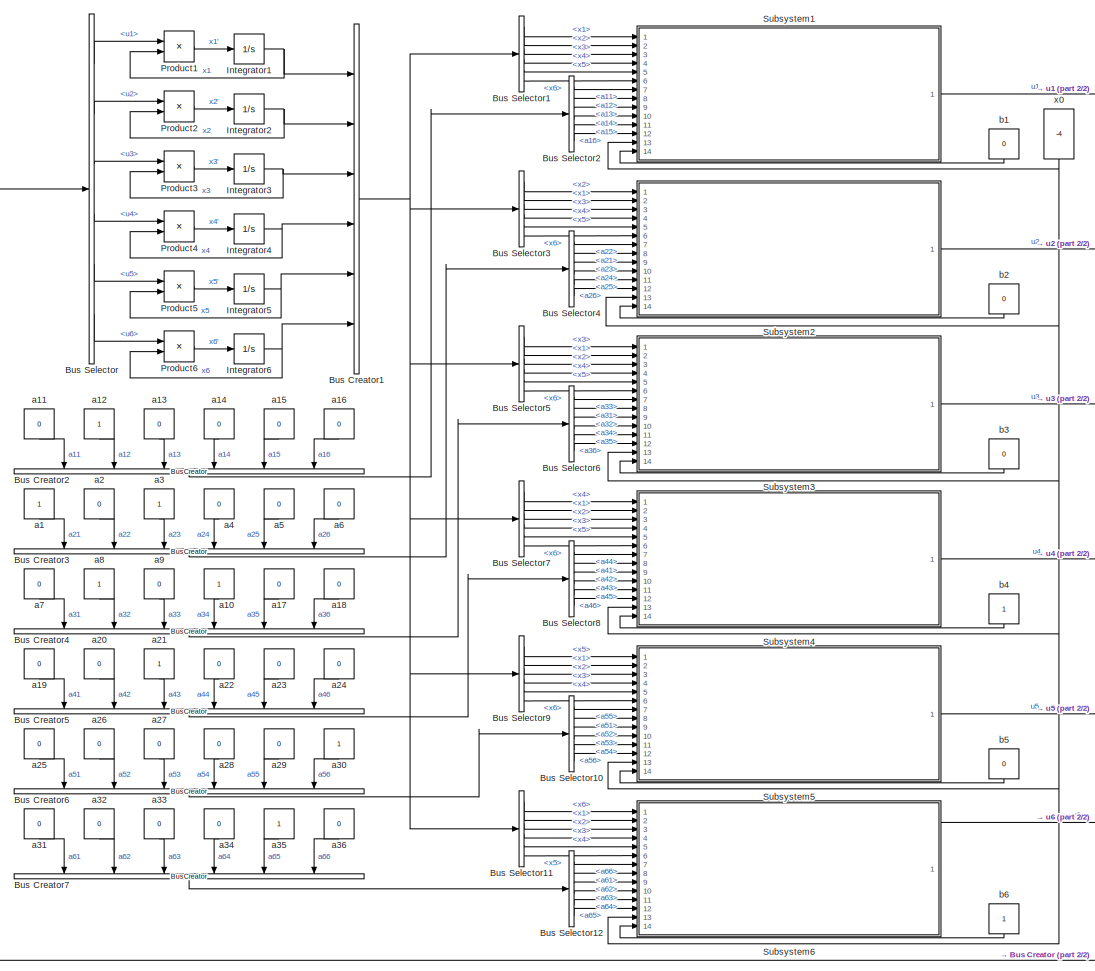
[diagram: root canvas - part 1/2, most of the canvas]
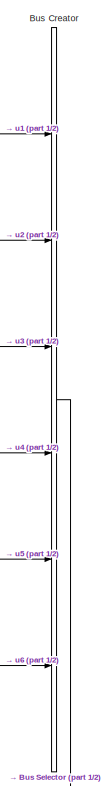
[diagram: root canvas - part 2/2, right side, full height]
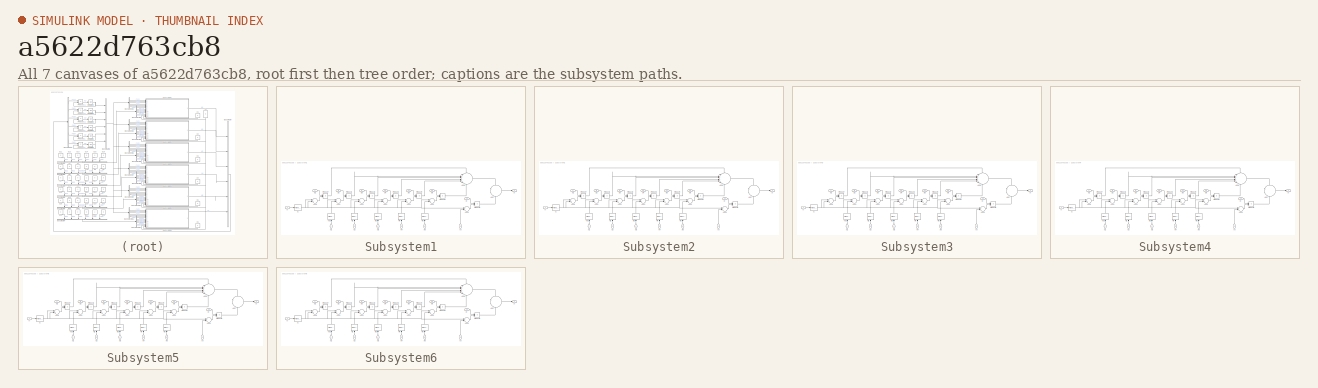
[diagram: thumbnail index - all 7 canvases of the model, root first then tree order]
MODEL slx_a5622d763cb8
KIND model
CONFIG AbsTol = auto
CONFIG EnableMultiTasking = off
CONFIG FixedStep = auto
CONFIG MaxStep = auto
CONFIG MinStep = auto
CONFIG RelTol = 1e-3
CONFIG SampleTimeConstraint = Unconstrained
CONFIG Solver = VariableStepAuto
CONFIG SolverName = VariableStepAuto
CONFIG StartTime = 0.0
CONFIG StopTime = 100
BLOCK [BusCreator] Bus Creator
  DisplayOption = bar
  InheritFromInputs = on
  Inputs = 6
  Ports = [6, 1]
BLOCK [BusCreator] Bus Creator1
  DisplayOption = bar
  InheritFromInputs = on
  Inputs = 6
  Ports = [6, 1]
BLOCK [BusCreator] Bus Creator2
  DisplayOption = bar
  InheritFromInputs = on
  Inputs = 6
  Ports = [6, 1]
BLOCK [BusCreator] Bus Creator3
  DisplayOption = bar
  InheritFromInputs = on
  Inputs = 6
  Ports = [6, 1]
BLOCK [BusCreator] Bus Creator4
  DisplayOption = bar
  InheritFromInputs = on
  Inputs = 6
  Ports = [6, 1]
BLOCK [BusCreator] Bus Creator5
  DisplayOption = bar
  InheritFromInputs = on
  Inputs = 6
  Ports = [6, 1]
BLOCK [BusCreator] Bus Creator6
  DisplayOption = bar
  InheritFromInputs = on
  Inputs = 6
  Ports = [6, 1]
BLOCK [BusCreator] Bus Creator7
  DisplayOption = bar
  InheritFromInputs = on
  Inputs = 6
  Ports = [6, 1]
BLOCK [BusSelector] Bus Selector
  OutputAsBus = off
  OutputSignals = u1,u2,u3,u4,u5,u6
  Ports = [1, 6]
BLOCK [BusSelector] Bus Selector1
  OutputAsBus = off
  OutputSignals = x1,x2,x3,x4,x5,x6
  Ports = [1, 6]
BLOCK [BusSelector] Bus Selector10
  OutputAsBus = off
  OutputSignals = a55,a51,a52,a53,a54,a56
  Ports = [1, 6]
BLOCK [BusSelector] Bus Selector11
  OutputAsBus = off
  OutputSignals = x6,x1,x2,x3,x4,x5
  Ports = [1, 6]
BLOCK [BusSelector] Bus Selector12
  OutputAsBus = off
  OutputSignals = a66,a61,a62,a63,a64,a65
  Ports = [1, 6]
BLOCK [BusSelector] Bus Selector2
  OutputAsBus = off
  OutputSignals = a11,a12,a13,a14,a15,a16
  Ports = [1, 6]
BLOCK [BusSelector] Bus Selector3
  OutputAsBus = off
  OutputSignals = x2,x1,x3,x4,x5,x6
  Ports = [1, 6]
BLOCK [BusSelector] Bus Selector4
  OutputAsBus = off
  OutputSignals = a22,a21,a23,a24,a25,a26
  Ports = [1, 6]
BLOCK [BusSelector] Bus Selector5
  OutputAsBus = off
  OutputSignals = x3,x1,x2,x4,x5,x6
  Ports = [1, 6]
BLOCK [BusSelector] Bus Selector6
  OutputAsBus = off
  OutputSignals = a33,a31,a32,a34,a35,a36
  Ports = [1, 6]
BLOCK [BusSelector] Bus Selector7
  OutputAsBus = off
  OutputSignals = x4,x1,x2,x3,x5,x6
  Ports = [1, 6]
BLOCK [BusSelector] Bus Selector8
  OutputAsBus = off
  OutputSignals = a44,a41,a42,a43,a45,a46
  Ports = [1, 6]
BLOCK [BusSelector] Bus Selector9
  OutputAsBus = off
  OutputSignals = x5,x1,x2,x3,x4,x6
  Ports = [1, 6]
BLOCK [Integrator] Integrator1
  InitialCondition = 1
  Ports = [1, 1]
BLOCK [Integrator] Integrator2
  InitialCondition = 7
  Ports = [1, 1]
BLOCK [Integrator] Integrator3
  InitialCondition = 0.5
  Ports = [1, 1]
BLOCK [Integrator] Integrator4
  InitialCondition = 5
  Ports = [1, 1]
BLOCK [Integrator] Integrator5
  InitialCondition = 3
  Ports = [1, 1]
BLOCK [Integrator] Integrator6
  InitialCondition = 8
  Ports = [1, 1]
BLOCK [Product] Product1
  InputSameDT = off
  OutDataTypeStr = Inherit: Inherit via internal rule
  Ports = [2, 1]
  RndMeth = Floor
  SaturateOnIntegerOverflow = off
BLOCK [Product] Product2
  InputSameDT = off
  OutDataTypeStr = Inherit: Inherit via internal rule
  Ports = [2, 1]
  RndMeth = Floor
  SaturateOnIntegerOverflow = off
BLOCK [Product] Product3
  InputSameDT = off
  OutDataTypeStr = Inherit: Inherit via internal rule
  Ports = [2, 1]
  RndMeth = Floor
  SaturateOnIntegerOverflow = off
BLOCK [Product] Product4
  InputSameDT = off
  OutDataTypeStr = Inherit: Inherit via internal rule
  Ports = [2, 1]
  RndMeth = Floor
  SaturateOnIntegerOverflow = off
BLOCK [Product] Product5
  InputSameDT = off
  OutDataTypeStr = Inherit: Inherit via internal rule
  Ports = [2, 1]
  RndMeth = Floor
  SaturateOnIntegerOverflow = off
BLOCK [Product] Product6
  InputSameDT = off
  OutDataTypeStr = Inherit: Inherit via internal rule
  Ports = [2, 1]
  RndMeth = Floor
  SaturateOnIntegerOverflow = off
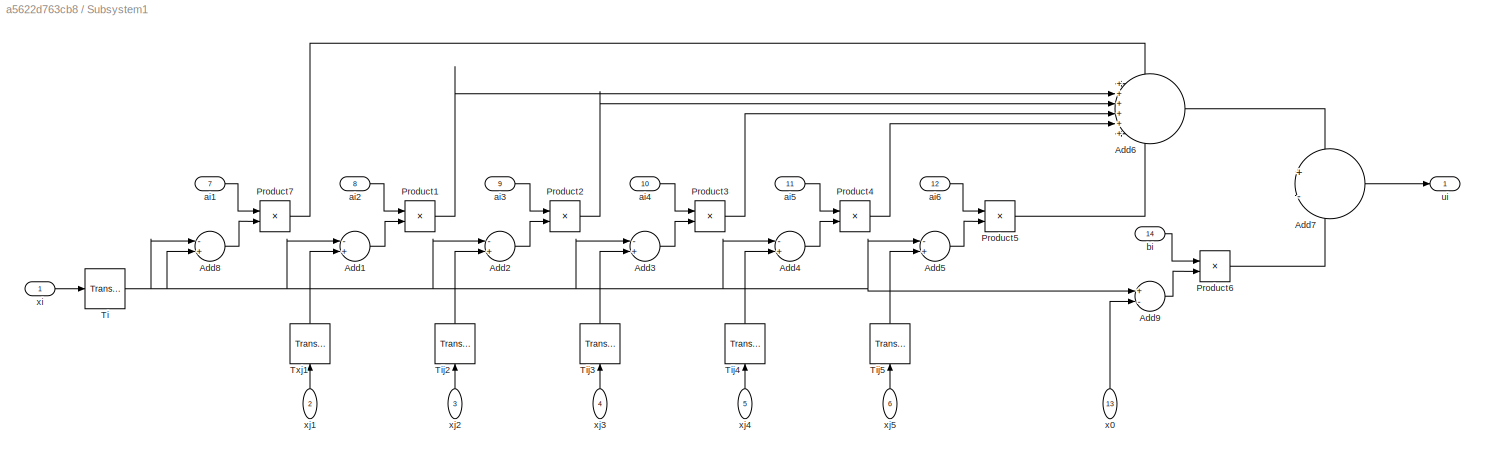
BLOCK [SubSystem] Subsystem1
  Ports = [14, 1]
  RequestExecContextInheritance = off
BLOCK [Sum] Subsystem1/Add1
  InputSameDT = off
  Inputs = -+
  OutDataTypeStr = Inherit: Inherit via internal rule
  Ports = [2, 1]
  SaturateOnIntegerOverflow = off
BLOCK [Sum] Subsystem1/Add2
  InputSameDT = off
  Inputs = -+
  OutDataTypeStr = Inherit: Inherit via internal rule
  Ports = [2, 1]
  SaturateOnIntegerOverflow = off
BLOCK [Sum] Subsystem1/Add3
  InputSameDT = off
  Inputs = -+
  OutDataTypeStr = Inherit: Inherit via internal rule
  Ports = [2, 1]
  SaturateOnIntegerOverflow = off
BLOCK [Sum] Subsystem1/Add4
  InputSameDT = off
  Inputs = -+
  OutDataTypeStr = Inherit: Inherit via internal rule
  Ports = [2, 1]
  SaturateOnIntegerOverflow = off
BLOCK [Sum] Subsystem1/Add5
  InputSameDT = off
  Inputs = -+
  OutDataTypeStr = Inherit: Inherit via internal rule
  Ports = [2, 1]
  SaturateOnIntegerOverflow = off
BLOCK [Sum] Subsystem1/Add6
  IconShape = round
  InputSameDT = off
  Inputs = ++++++
  OutDataTypeStr = Inherit: Inherit via internal rule
  Ports = [6, 1]
  SaturateOnIntegerOverflow = off
BLOCK [Sum] Subsystem1/Add7
  IconShape = round
  InputSameDT = off
  Inputs = +-
  OutDataTypeStr = Inherit: Inherit via internal rule
  Ports = [2, 1]
  SaturateOnIntegerOverflow = off
BLOCK [Sum] Subsystem1/Add8
  InputSameDT = off
  Inputs = -+
  OutDataTypeStr = Inherit: Inherit via internal rule
  Ports = [2, 1]
  SaturateOnIntegerOverflow = off
BLOCK [Sum] Subsystem1/Add9
  InputSameDT = off
  Inputs = +-
  OutDataTypeStr = Inherit: Inherit via internal rule
  Ports = [2, 1]
  SaturateOnIntegerOverflow = off
BLOCK [Product] Subsystem1/Product1
  InputSameDT = off
  OutDataTypeStr = Inherit: Inherit via internal rule
  Ports = [2, 1]
  RndMeth = Floor
  SaturateOnIntegerOverflow = off
BLOCK [Product] Subsystem1/Product2
  InputSameDT = off
  OutDataTypeStr = Inherit: Inherit via internal rule
  Ports = [2, 1]
  RndMeth = Floor
  SaturateOnIntegerOverflow = off
BLOCK [Product] Subsystem1/Product3
  InputSameDT = off
  OutDataTypeStr = Inherit: Inherit via internal rule
  Ports = [2, 1]
  RndMeth = Floor
  SaturateOnIntegerOverflow = off
BLOCK [Product] Subsystem1/Product4
  InputSameDT = off
  OutDataTypeStr = Inherit: Inherit via internal rule
  Ports = [2, 1]
  RndMeth = Floor
  SaturateOnIntegerOverflow = off
BLOCK [Product] Subsystem1/Product5
  InputSameDT = off
  OutDataTypeStr = Inherit: Inherit via internal rule
  Ports = [2, 1]
  RndMeth = Floor
  SaturateOnIntegerOverflow = off
BLOCK [Product] Subsystem1/Product6
  InputSameDT = off
  OutDataTypeStr = Inherit: Inherit via internal rule
  Ports = [2, 1]
  RndMeth = Floor
  SaturateOnIntegerOverflow = off
BLOCK [Product] Subsystem1/Product7
  InputSameDT = off
  OutDataTypeStr = Inherit: Inherit via internal rule
  Ports = [2, 1]
  RndMeth = Floor
  SaturateOnIntegerOverflow = off
BLOCK [TransportDelay] Subsystem1/Ti
  DelayTime = 0
  Ports = [1, 1]
BLOCK [TransportDelay] Subsystem1/Tij2
  DelayTime = 0
  Ports = [1, 1]
BLOCK [TransportDelay] Subsystem1/Tij3
  DelayTime = 0
  Ports = [1, 1]
BLOCK [TransportDelay] Subsystem1/Tij4
  DelayTime = 0
  Ports = [1, 1]
BLOCK [TransportDelay] Subsystem1/Tij5
  DelayTime = 0
  Ports = [1, 1]
BLOCK [TransportDelay] Subsystem1/Txj1
  DelayTime = 0
  Ports = [1, 1]
BLOCK [Inport] Subsystem1/ai1
  IconDisplay = Port number
  Port = 7
BLOCK [Inport] Subsystem1/ai2
  IconDisplay = Port number
  Port = 8
BLOCK [Inport] Subsystem1/ai3
  IconDisplay = Port number
  Port = 9
BLOCK [Inport] Subsystem1/ai4
  IconDisplay = Port number
  Port = 10
BLOCK [Inport] Subsystem1/ai5
  IconDisplay = Port number
  Port = 11
BLOCK [Inport] Subsystem1/ai6
  IconDisplay = Port number
  Port = 12
BLOCK [Inport] Subsystem1/bi
  IconDisplay = Port number
  Port = 14
BLOCK [Outport] Subsystem1/ui
  IconDisplay = Port number
BLOCK [Inport] Subsystem1/x0
  IconDisplay = Port number
  Port = 13
BLOCK [Inport] Subsystem1/xi
  IconDisplay = Port number
BLOCK [Inport] Subsystem1/xj1
  IconDisplay = Port number
  Port = 2
BLOCK [Inport] Subsystem1/xj2
  IconDisplay = Port number
  Port = 3
BLOCK [Inport] Subsystem1/xj3
  IconDisplay = Port number
  Port = 4
BLOCK [Inport] Subsystem1/xj4
  IconDisplay = Port number
  Port = 5
BLOCK [Inport] Subsystem1/xj5
  IconDisplay = Port number
  Port = 6
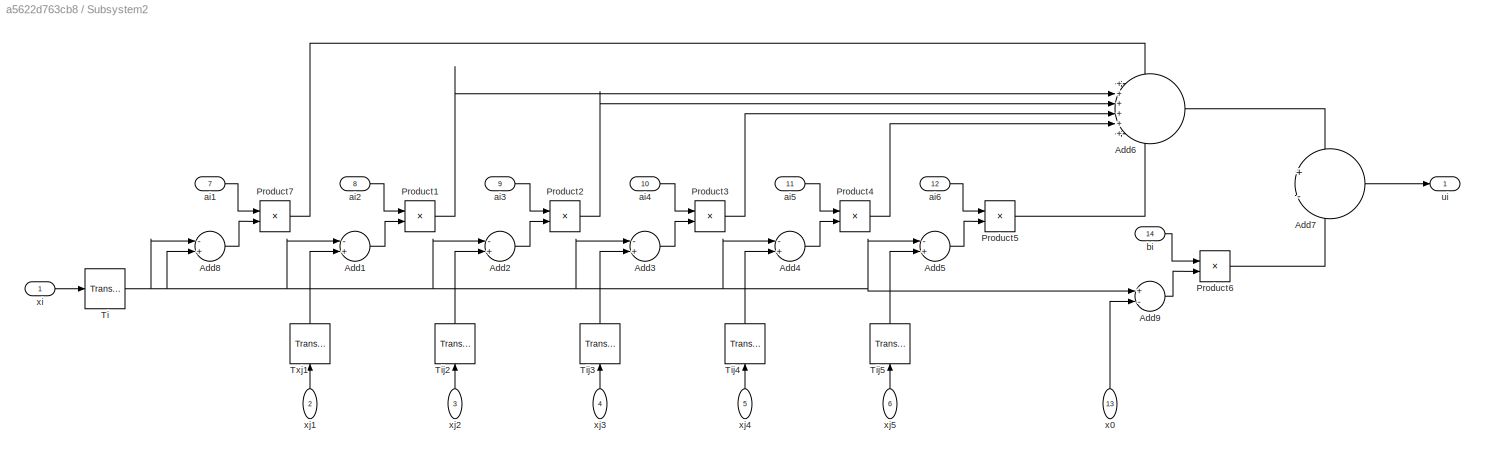
BLOCK [SubSystem] Subsystem2
  Ports = [14, 1]
  RequestExecContextInheritance = off
BLOCK [Sum] Subsystem2/Add1
  InputSameDT = off
  Inputs = -+
  OutDataTypeStr = Inherit: Inherit via internal rule
  Ports = [2, 1]
  SaturateOnIntegerOverflow = off
BLOCK [Sum] Subsystem2/Add2
  InputSameDT = off
  Inputs = -+
  OutDataTypeStr = Inherit: Inherit via internal rule
  Ports = [2, 1]
  SaturateOnIntegerOverflow = off
BLOCK [Sum] Subsystem2/Add3
  InputSameDT = off
  Inputs = -+
  OutDataTypeStr = Inherit: Inherit via internal rule
  Ports = [2, 1]
  SaturateOnIntegerOverflow = off
BLOCK [Sum] Subsystem2/Add4
  InputSameDT = off
  Inputs = -+
  OutDataTypeStr = Inherit: Inherit via internal rule
  Ports = [2, 1]
  SaturateOnIntegerOverflow = off
BLOCK [Sum] Subsystem2/Add5
  InputSameDT = off
  Inputs = -+
  OutDataTypeStr = Inherit: Inherit via internal rule
  Ports = [2, 1]
  SaturateOnIntegerOverflow = off
BLOCK [Sum] Subsystem2/Add6
  IconShape = round
  InputSameDT = off
  Inputs = ++++++
  OutDataTypeStr = Inherit: Inherit via internal rule
  Ports = [6, 1]
  SaturateOnIntegerOverflow = off
BLOCK [Sum] Subsystem2/Add7
  IconShape = round
  InputSameDT = off
  Inputs = +-
  OutDataTypeStr = Inherit: Inherit via internal rule
  Ports = [2, 1]
  SaturateOnIntegerOverflow = off
BLOCK [Sum] Subsystem2/Add8
  InputSameDT = off
  Inputs = -+
  OutDataTypeStr = Inherit: Inherit via internal rule
  Ports = [2, 1]
  SaturateOnIntegerOverflow = off
BLOCK [Sum] Subsystem2/Add9
  InputSameDT = off
  Inputs = +-
  OutDataTypeStr = Inherit: Inherit via internal rule
  Ports = [2, 1]
  SaturateOnIntegerOverflow = off
BLOCK [Product] Subsystem2/Product1
  InputSameDT = off
  OutDataTypeStr = Inherit: Inherit via internal rule
  Ports = [2, 1]
  RndMeth = Floor
  SaturateOnIntegerOverflow = off
BLOCK [Product] Subsystem2/Product2
  InputSameDT = off
  OutDataTypeStr = Inherit: Inherit via internal rule
  Ports = [2, 1]
  RndMeth = Floor
  SaturateOnIntegerOverflow = off
BLOCK [Product] Subsystem2/Product3
  InputSameDT = off
  OutDataTypeStr = Inherit: Inherit via internal rule
  Ports = [2, 1]
  RndMeth = Floor
  SaturateOnIntegerOverflow = off
BLOCK [Product] Subsystem2/Product4
  InputSameDT = off
  OutDataTypeStr = Inherit: Inherit via internal rule
  Ports = [2, 1]
  RndMeth = Floor
  SaturateOnIntegerOverflow = off
BLOCK [Product] Subsystem2/Product5
  InputSameDT = off
  OutDataTypeStr = Inherit: Inherit via internal rule
  Ports = [2, 1]
  RndMeth = Floor
  SaturateOnIntegerOverflow = off
BLOCK [Product] Subsystem2/Product6
  InputSameDT = off
  OutDataTypeStr = Inherit: Inherit via internal rule
  Ports = [2, 1]
  RndMeth = Floor
  SaturateOnIntegerOverflow = off
BLOCK [Product] Subsystem2/Product7
  InputSameDT = off
  OutDataTypeStr = Inherit: Inherit via internal rule
  Ports = [2, 1]
  RndMeth = Floor
  SaturateOnIntegerOverflow = off
BLOCK [TransportDelay] Subsystem2/Ti
  DelayTime = 0
  Ports = [1, 1]
BLOCK [TransportDelay] Subsystem2/Tij2
  DelayTime = 0
  Ports = [1, 1]
BLOCK [TransportDelay] Subsystem2/Tij3
  DelayTime = 0
  Ports = [1, 1]
BLOCK [TransportDelay] Subsystem2/Tij4
  DelayTime = 0
  Ports = [1, 1]
BLOCK [TransportDelay] Subsystem2/Tij5
  DelayTime = 0
  Ports = [1, 1]
BLOCK [TransportDelay] Subsystem2/Txj1
  DelayTime = 0
  Ports = [1, 1]
BLOCK [Inport] Subsystem2/ai1
  IconDisplay = Port number
  Port = 7
BLOCK [Inport] Subsystem2/ai2
  IconDisplay = Port number
  Port = 8
BLOCK [Inport] Subsystem2/ai3
  IconDisplay = Port number
  Port = 9
BLOCK [Inport] Subsystem2/ai4
  IconDisplay = Port number
  Port = 10
BLOCK [Inport] Subsystem2/ai5
  IconDisplay = Port number
  Port = 11
BLOCK [Inport] Subsystem2/ai6
  IconDisplay = Port number
  Port = 12
BLOCK [Inport] Subsystem2/bi
  IconDisplay = Port number
  Port = 14
BLOCK [Outport] Subsystem2/ui
  IconDisplay = Port number
BLOCK [Inport] Subsystem2/x0
  IconDisplay = Port number
  Port = 13
BLOCK [Inport] Subsystem2/xi
  IconDisplay = Port number
BLOCK [Inport] Subsystem2/xj1
  IconDisplay = Port number
  Port = 2
BLOCK [Inport] Subsystem2/xj2
  IconDisplay = Port number
  Port = 3
BLOCK [Inport] Subsystem2/xj3
  IconDisplay = Port number
  Port = 4
BLOCK [Inport] Subsystem2/xj4
  IconDisplay = Port number
  Port = 5
BLOCK [Inport] Subsystem2/xj5
  IconDisplay = Port number
  Port = 6
BLOCK [SubSystem] Subsystem3
  Ports = [14, 1]
  RequestExecContextInheritance = off
BLOCK [Sum] Subsystem3/Add1
  InputSameDT = off
  Inputs = -+
  OutDataTypeStr = Inherit: Inherit via internal rule
  Ports = [2, 1]
  SaturateOnIntegerOverflow = off
BLOCK [Sum] Subsystem3/Add2
  InputSameDT = off
  Inputs = -+
  OutDataTypeStr = Inherit: Inherit via internal rule
  Ports = [2, 1]
  SaturateOnIntegerOverflow = off
BLOCK [Sum] Subsystem3/Add3
  InputSameDT = off
  Inputs = -+
  OutDataTypeStr = Inherit: Inherit via internal rule
  Ports = [2, 1]
  SaturateOnIntegerOverflow = off
BLOCK [Sum] Subsystem3/Add4
  InputSameDT = off
  Inputs = -+
  OutDataTypeStr = Inherit: Inherit via internal rule
  Ports = [2, 1]
  SaturateOnIntegerOverflow = off
BLOCK [Sum] Subsystem3/Add5
  InputSameDT = off
  Inputs = -+
  OutDataTypeStr = Inherit: Inherit via internal rule
  Ports = [2, 1]
  SaturateOnIntegerOverflow = off
BLOCK [Sum] Subsystem3/Add6
  IconShape = round
  InputSameDT = off
  Inputs = ++++++
  OutDataTypeStr = Inherit: Inherit via internal rule
  Ports = [6, 1]
  SaturateOnIntegerOverflow = off
BLOCK [Sum] Subsystem3/Add7
  IconShape = round
  InputSameDT = off
  Inputs = +-
  OutDataTypeStr = Inherit: Inherit via internal rule
  Ports = [2, 1]
  SaturateOnIntegerOverflow = off
BLOCK [Sum] Subsystem3/Add8
  InputSameDT = off
  Inputs = -+
  OutDataTypeStr = Inherit: Inherit via internal rule
  Ports = [2, 1]
  SaturateOnIntegerOverflow = off
BLOCK [Sum] Subsystem3/Add9
  InputSameDT = off
  Inputs = +-
  OutDataTypeStr = Inherit: Inherit via internal rule
  Ports = [2, 1]
  SaturateOnIntegerOverflow = off
BLOCK [Product] Subsystem3/Product1
  InputSameDT = off
  OutDataTypeStr = Inherit: Inherit via internal rule
  Ports = [2, 1]
  RndMeth = Floor
  SaturateOnIntegerOverflow = off
BLOCK [Product] Subsystem3/Product2
  InputSameDT = off
  OutDataTypeStr = Inherit: Inherit via internal rule
  Ports = [2, 1]
  RndMeth = Floor
  SaturateOnIntegerOverflow = off
BLOCK [Product] Subsystem3/Product3
  InputSameDT = off
  OutDataTypeStr = Inherit: Inherit via internal rule
  Ports = [2, 1]
  RndMeth = Floor
  SaturateOnIntegerOverflow = off
BLOCK [Product] Subsystem3/Product4
  InputSameDT = off
  OutDataTypeStr = Inherit: Inherit via internal rule
  Ports = [2, 1]
  RndMeth = Floor
  SaturateOnIntegerOverflow = off
BLOCK [Product] Subsystem3/Product5
  InputSameDT = off
  OutDataTypeStr = Inherit: Inherit via internal rule
  Ports = [2, 1]
  RndMeth = Floor
  SaturateOnIntegerOverflow = off
BLOCK [Product] Subsystem3/Product6
  InputSameDT = off
  OutDataTypeStr = Inherit: Inherit via internal rule
  Ports = [2, 1]
  RndMeth = Floor
  SaturateOnIntegerOverflow = off
BLOCK [Product] Subsystem3/Product7
  InputSameDT = off
  OutDataTypeStr = Inherit: Inherit via internal rule
  Ports = [2, 1]
  RndMeth = Floor
  SaturateOnIntegerOverflow = off
BLOCK [TransportDelay] Subsystem3/Ti
  DelayTime = 0
  Ports = [1, 1]
BLOCK [TransportDelay] Subsystem3/Tij2
  DelayTime = 0
  Ports = [1, 1]
BLOCK [TransportDelay] Subsystem3/Tij3
  DelayTime = 0
  Ports = [1, 1]
BLOCK [TransportDelay] Subsystem3/Tij4
  DelayTime = 0
  Ports = [1, 1]
BLOCK [TransportDelay] Subsystem3/Tij5
  DelayTime = 0
  Ports = [1, 1]
BLOCK [TransportDelay] Subsystem3/Txj1
  DelayTime = 0
  Ports = [1, 1]
BLOCK [Inport] Subsystem3/ai1
  IconDisplay = Port number
  Port = 7
BLOCK [Inport] Subsystem3/ai2
  IconDisplay = Port number
  Port = 8
BLOCK [Inport] Subsystem3/ai3
  IconDisplay = Port number
  Port = 9
BLOCK [Inport] Subsystem3/ai4
  IconDisplay = Port number
  Port = 10
BLOCK [Inport] Subsystem3/ai5
  IconDisplay = Port number
  Port = 11
BLOCK [Inport] Subsystem3/ai6
  IconDisplay = Port number
  Port = 12
BLOCK [Inport] Subsystem3/bi
  IconDisplay = Port number
  Port = 14
BLOCK [Outport] Subsystem3/ui
  IconDisplay = Port number
BLOCK [Inport] Subsystem3/x0
  IconDisplay = Port number
  Port = 13
BLOCK [Inport] Subsystem3/xi
  IconDisplay = Port number
BLOCK [Inport] Subsystem3/xj1
  IconDisplay = Port number
  Port = 2
BLOCK [Inport] Subsystem3/xj2
  IconDisplay = Port number
  Port = 3
BLOCK [Inport] Subsystem3/xj3
  IconDisplay = Port number
  Port = 4
BLOCK [Inport] Subsystem3/xj4
  IconDisplay = Port number
  Port = 5
BLOCK [Inport] Subsystem3/xj5
  IconDisplay = Port number
  Port = 6
BLOCK [SubSystem] Subsystem4
  Ports = [14, 1]
  RequestExecContextInheritance = off
BLOCK [Sum] Subsystem4/Add1
  InputSameDT = off
  Inputs = -+
  OutDataTypeStr = Inherit: Inherit via internal rule
  Ports = [2, 1]
  SaturateOnIntegerOverflow = off
BLOCK [Sum] Subsystem4/Add2
  InputSameDT = off
  Inputs = -+
  OutDataTypeStr = Inherit: Inherit via internal rule
  Ports = [2, 1]
  SaturateOnIntegerOverflow = off
BLOCK [Sum] Subsystem4/Add3
  InputSameDT = off
  Inputs = -+
  OutDataTypeStr = Inherit: Inherit via internal rule
  Ports = [2, 1]
  SaturateOnIntegerOverflow = off
BLOCK [Sum] Subsystem4/Add4
  InputSameDT = off
  Inputs = -+
  OutDataTypeStr = Inherit: Inherit via internal rule
  Ports = [2, 1]
  SaturateOnIntegerOverflow = off
BLOCK [Sum] Subsystem4/Add5
  InputSameDT = off
  Inputs = -+
  OutDataTypeStr = Inherit: Inherit via internal rule
  Ports = [2, 1]
  SaturateOnIntegerOverflow = off
BLOCK [Sum] Subsystem4/Add6
  IconShape = round
  InputSameDT = off
  Inputs = ++++++
  OutDataTypeStr = Inherit: Inherit via internal rule
  Ports = [6, 1]
  SaturateOnIntegerOverflow = off
BLOCK [Sum] Subsystem4/Add7
  IconShape = round
  InputSameDT = off
  Inputs = +-
  OutDataTypeStr = Inherit: Inherit via internal rule
  Ports = [2, 1]
  SaturateOnIntegerOverflow = off
BLOCK [Sum] Subsystem4/Add8
  InputSameDT = off
  Inputs = -+
  OutDataTypeStr = Inherit: Inherit via internal rule
  Ports = [2, 1]
  SaturateOnIntegerOverflow = off
BLOCK [Sum] Subsystem4/Add9
  InputSameDT = off
  Inputs = +-
  OutDataTypeStr = Inherit: Inherit via internal rule
  Ports = [2, 1]
  SaturateOnIntegerOverflow = off
BLOCK [Product] Subsystem4/Product1
  InputSameDT = off
  OutDataTypeStr = Inherit: Inherit via internal rule
  Ports = [2, 1]
  RndMeth = Floor
  SaturateOnIntegerOverflow = off
BLOCK [Product] Subsystem4/Product2
  InputSameDT = off
  OutDataTypeStr = Inherit: Inherit via internal rule
  Ports = [2, 1]
  RndMeth = Floor
  SaturateOnIntegerOverflow = off
BLOCK [Product] Subsystem4/Product3
  InputSameDT = off
  OutDataTypeStr = Inherit: Inherit via internal rule
  Ports = [2, 1]
  RndMeth = Floor
  SaturateOnIntegerOverflow = off
BLOCK [Product] Subsystem4/Product4
  InputSameDT = off
  OutDataTypeStr = Inherit: Inherit via internal rule
  Ports = [2, 1]
  RndMeth = Floor
  SaturateOnIntegerOverflow = off
BLOCK [Product] Subsystem4/Product5
  InputSameDT = off
  OutDataTypeStr = Inherit: Inherit via internal rule
  Ports = [2, 1]
  RndMeth = Floor
  SaturateOnIntegerOverflow = off
BLOCK [Product] Subsystem4/Product6
  InputSameDT = off
  OutDataTypeStr = Inherit: Inherit via internal rule
  Ports = [2, 1]
  RndMeth = Floor
  SaturateOnIntegerOverflow = off
BLOCK [Product] Subsystem4/Product7
  InputSameDT = off
  OutDataTypeStr = Inherit: Inherit via internal rule
  Ports = [2, 1]
  RndMeth = Floor
  SaturateOnIntegerOverflow = off
BLOCK [TransportDelay] Subsystem4/Ti
  DelayTime = 0
  Ports = [1, 1]
BLOCK [TransportDelay] Subsystem4/Tij2
  DelayTime = 0
  Ports = [1, 1]
BLOCK [TransportDelay] Subsystem4/Tij3
  DelayTime = 0
  Ports = [1, 1]
BLOCK [TransportDelay] Subsystem4/Tij4
  DelayTime = 0
  Ports = [1, 1]
BLOCK [TransportDelay] Subsystem4/Tij5
  DelayTime = 0
  Ports = [1, 1]
BLOCK [TransportDelay] Subsystem4/Txj1
  DelayTime = 0
  Ports = [1, 1]
BLOCK [Inport] Subsystem4/ai1
  IconDisplay = Port number
  Port = 7
BLOCK [Inport] Subsystem4/ai2
  IconDisplay = Port number
  Port = 8
BLOCK [Inport] Subsystem4/ai3
  IconDisplay = Port number
  Port = 9
BLOCK [Inport] Subsystem4/ai4
  IconDisplay = Port number
  Port = 10
BLOCK [Inport] Subsystem4/ai5
  IconDisplay = Port number
  Port = 11
BLOCK [Inport] Subsystem4/ai6
  IconDisplay = Port number
  Port = 12
BLOCK [Inport] Subsystem4/bi
  IconDisplay = Port number
  Port = 14
BLOCK [Outport] Subsystem4/ui
  IconDisplay = Port number
BLOCK [Inport] Subsystem4/x0
  IconDisplay = Port number
  Port = 13
BLOCK [Inport] Subsystem4/xi
  IconDisplay = Port number
BLOCK [Inport] Subsystem4/xj1
  IconDisplay = Port number
  Port = 2
BLOCK [Inport] Subsystem4/xj2
  IconDisplay = Port number
  Port = 3
BLOCK [Inport] Subsystem4/xj3
  IconDisplay = Port number
  Port = 4
BLOCK [Inport] Subsystem4/xj4
  IconDisplay = Port number
  Port = 5
BLOCK [Inport] Subsystem4/xj5
  IconDisplay = Port number
  Port = 6
BLOCK [SubSystem] Subsystem5
  Ports = [14, 1]
  RequestExecContextInheritance = off
BLOCK [Sum] Subsystem5/Add1
  InputSameDT = off
  Inputs = -+
  OutDataTypeStr = Inherit: Inherit via internal rule
  Ports = [2, 1]
  SaturateOnIntegerOverflow = off
BLOCK [Sum] Subsystem5/Add2
  InputSameDT = off
  Inputs = -+
  OutDataTypeStr = Inherit: Inherit via internal rule
  Ports = [2, 1]
  SaturateOnIntegerOverflow = off
BLOCK [Sum] Subsystem5/Add3
  InputSameDT = off
  Inputs = -+
  OutDataTypeStr = Inherit: Inherit via internal rule
  Ports = [2, 1]
  SaturateOnIntegerOverflow = off
BLOCK [Sum] Subsystem5/Add4
  InputSameDT = off
  Inputs = -+
  OutDataTypeStr = Inherit: Inherit via internal rule
  Ports = [2, 1]
  SaturateOnIntegerOverflow = off
BLOCK [Sum] Subsystem5/Add5
  InputSameDT = off
  Inputs = -+
  OutDataTypeStr = Inherit: Inherit via internal rule
  Ports = [2, 1]
  SaturateOnIntegerOverflow = off
BLOCK [Sum] Subsystem5/Add6
  IconShape = round
  InputSameDT = off
  Inputs = ++++++
  OutDataTypeStr = Inherit: Inherit via internal rule
  Ports = [6, 1]
  SaturateOnIntegerOverflow = off
BLOCK [Sum] Subsystem5/Add7
  IconShape = round
  InputSameDT = off
  Inputs = +-
  OutDataTypeStr = Inherit: Inherit via internal rule
  Ports = [2, 1]
  SaturateOnIntegerOverflow = off
BLOCK [Sum] Subsystem5/Add8
  InputSameDT = off
  Inputs = -+
  OutDataTypeStr = Inherit: Inherit via internal rule
  Ports = [2, 1]
  SaturateOnIntegerOverflow = off
BLOCK [Sum] Subsystem5/Add9
  InputSameDT = off
  Inputs = +-
  OutDataTypeStr = Inherit: Inherit via internal rule
  Ports = [2, 1]
  SaturateOnIntegerOverflow = off
BLOCK [Product] Subsystem5/Product1
  InputSameDT = off
  OutDataTypeStr = Inherit: Inherit via internal rule
  Ports = [2, 1]
  RndMeth = Floor
  SaturateOnIntegerOverflow = off
BLOCK [Product] Subsystem5/Product2
  InputSameDT = off
  OutDataTypeStr = Inherit: Inherit via internal rule
  Ports = [2, 1]
  RndMeth = Floor
  SaturateOnIntegerOverflow = off
BLOCK [Product] Subsystem5/Product3
  InputSameDT = off
  OutDataTypeStr = Inherit: Inherit via internal rule
  Ports = [2, 1]
  RndMeth = Floor
  SaturateOnIntegerOverflow = off
BLOCK [Product] Subsystem5/Product4
  InputSameDT = off
  OutDataTypeStr = Inherit: Inherit via internal rule
  Ports = [2, 1]
  RndMeth = Floor
  SaturateOnIntegerOverflow = off
BLOCK [Product] Subsystem5/Product5
  InputSameDT = off
  OutDataTypeStr = Inherit: Inherit via internal rule
  Ports = [2, 1]
  RndMeth = Floor
  SaturateOnIntegerOverflow = off
BLOCK [Product] Subsystem5/Product6
  InputSameDT = off
  OutDataTypeStr = Inherit: Inherit via internal rule
  Ports = [2, 1]
  RndMeth = Floor
  SaturateOnIntegerOverflow = off
BLOCK [Product] Subsystem5/Product7
  InputSameDT = off
  OutDataTypeStr = Inherit: Inherit via internal rule
  Ports = [2, 1]
  RndMeth = Floor
  SaturateOnIntegerOverflow = off
BLOCK [TransportDelay] Subsystem5/Ti
  DelayTime = 0
  Ports = [1, 1]
BLOCK [TransportDelay] Subsystem5/Tij2
  DelayTime = 0
  Ports = [1, 1]
BLOCK [TransportDelay] Subsystem5/Tij3
  DelayTime = 0
  Ports = [1, 1]
BLOCK [TransportDelay] Subsystem5/Tij4
  DelayTime = 0
  Ports = [1, 1]
BLOCK [TransportDelay] Subsystem5/Tij5
  DelayTime = 0
  Ports = [1, 1]
BLOCK [TransportDelay] Subsystem5/Txj1
  DelayTime = 0
  Ports = [1, 1]
BLOCK [Inport] Subsystem5/ai1
  IconDisplay = Port number
  Port = 7
BLOCK [Inport] Subsystem5/ai2
  IconDisplay = Port number
  Port = 8
BLOCK [Inport] Subsystem5/ai3
  IconDisplay = Port number
  Port = 9
BLOCK [Inport] Subsystem5/ai4
  IconDisplay = Port number
  Port = 10
BLOCK [Inport] Subsystem5/ai5
  IconDisplay = Port number
  Port = 11
BLOCK [Inport] Subsystem5/ai6
  IconDisplay = Port number
  Port = 12
BLOCK [Inport] Subsystem5/bi
  IconDisplay = Port number
  Port = 14
BLOCK [Outport] Subsystem5/ui
  IconDisplay = Port number
BLOCK [Inport] Subsystem5/x0
  IconDisplay = Port number
  Port = 13
BLOCK [Inport] Subsystem5/xi
  IconDisplay = Port number
BLOCK [Inport] Subsystem5/xj1
  IconDisplay = Port number
  Port = 2
BLOCK [Inport] Subsystem5/xj2
  IconDisplay = Port number
  Port = 3
BLOCK [Inport] Subsystem5/xj3
  IconDisplay = Port number
  Port = 4
BLOCK [Inport] Subsystem5/xj4
  IconDisplay = Port number
  Port = 5
BLOCK [Inport] Subsystem5/xj5
  IconDisplay = Port number
  Port = 6
BLOCK [SubSystem] Subsystem6
  Ports = [14, 1]
  RequestExecContextInheritance = off
BLOCK [Sum] Subsystem6/Add1
  InputSameDT = off
  Inputs = -+
  OutDataTypeStr = Inherit: Inherit via internal rule
  Ports = [2, 1]
  SaturateOnIntegerOverflow = off
BLOCK [Sum] Subsystem6/Add2
  InputSameDT = off
  Inputs = -+
  OutDataTypeStr = Inherit: Inherit via internal rule
  Ports = [2, 1]
  SaturateOnIntegerOverflow = off
BLOCK [Sum] Subsystem6/Add3
  InputSameDT = off
  Inputs = -+
  OutDataTypeStr = Inherit: Inherit via internal rule
  Ports = [2, 1]
  SaturateOnIntegerOverflow = off
BLOCK [Sum] Subsystem6/Add4
  InputSameDT = off
  Inputs = -+
  OutDataTypeStr = Inherit: Inherit via internal rule
  Ports = [2, 1]
  SaturateOnIntegerOverflow = off
BLOCK [Sum] Subsystem6/Add5
  InputSameDT = off
  Inputs = -+
  OutDataTypeStr = Inherit: Inherit via internal rule
  Ports = [2, 1]
  SaturateOnIntegerOverflow = off
BLOCK [Sum] Subsystem6/Add6
  IconShape = round
  InputSameDT = off
  Inputs = ++++++
  OutDataTypeStr = Inherit: Inherit via internal rule
  Ports = [6, 1]
  SaturateOnIntegerOverflow = off
BLOCK [Sum] Subsystem6/Add7
  IconShape = round
  InputSameDT = off
  Inputs = +-
  OutDataTypeStr = Inherit: Inherit via internal rule
  Ports = [2, 1]
  SaturateOnIntegerOverflow = off
BLOCK [Sum] Subsystem6/Add8
  InputSameDT = off
  Inputs = -+
  OutDataTypeStr = Inherit: Inherit via internal rule
  Ports = [2, 1]
  SaturateOnIntegerOverflow = off
BLOCK [Sum] Subsystem6/Add9
  InputSameDT = off
  Inputs = +-
  OutDataTypeStr = Inherit: Inherit via internal rule
  Ports = [2, 1]
  SaturateOnIntegerOverflow = off
BLOCK [Product] Subsystem6/Product1
  InputSameDT = off
  OutDataTypeStr = Inherit: Inherit via internal rule
  Ports = [2, 1]
  RndMeth = Floor
  SaturateOnIntegerOverflow = off
BLOCK [Product] Subsystem6/Product2
  InputSameDT = off
  OutDataTypeStr = Inherit: Inherit via internal rule
  Ports = [2, 1]
  RndMeth = Floor
  SaturateOnIntegerOverflow = off
BLOCK [Product] Subsystem6/Product3
  InputSameDT = off
  OutDataTypeStr = Inherit: Inherit via internal rule
  Ports = [2, 1]
  RndMeth = Floor
  SaturateOnIntegerOverflow = off
BLOCK [Product] Subsystem6/Product4
  InputSameDT = off
  OutDataTypeStr = Inherit: Inherit via internal rule
  Ports = [2, 1]
  RndMeth = Floor
  SaturateOnIntegerOverflow = off
BLOCK [Product] Subsystem6/Product5
  InputSameDT = off
  OutDataTypeStr = Inherit: Inherit via internal rule
  Ports = [2, 1]
  RndMeth = Floor
  SaturateOnIntegerOverflow = off
BLOCK [Product] Subsystem6/Product6
  InputSameDT = off
  OutDataTypeStr = Inherit: Inherit via internal rule
  Ports = [2, 1]
  RndMeth = Floor
  SaturateOnIntegerOverflow = off
BLOCK [Product] Subsystem6/Product7
  InputSameDT = off
  OutDataTypeStr = Inherit: Inherit via internal rule
  Ports = [2, 1]
  RndMeth = Floor
  SaturateOnIntegerOverflow = off
BLOCK [TransportDelay] Subsystem6/Ti
  DelayTime = 0
  Ports = [1, 1]
BLOCK [TransportDelay] Subsystem6/Tij2
  DelayTime = 0
  Ports = [1, 1]
BLOCK [TransportDelay] Subsystem6/Tij3
  DelayTime = 0
  Ports = [1, 1]
BLOCK [TransportDelay] Subsystem6/Tij4
  DelayTime = 0
  Ports = [1, 1]
BLOCK [TransportDelay] Subsystem6/Tij5
  DelayTime = 0
  Ports = [1, 1]
BLOCK [TransportDelay] Subsystem6/Txj1
  DelayTime = 0
  Ports = [1, 1]
BLOCK [Inport] Subsystem6/ai1
  IconDisplay = Port number
  Port = 7
BLOCK [Inport] Subsystem6/ai2
  IconDisplay = Port number
  Port = 8
BLOCK [Inport] Subsystem6/ai3
  IconDisplay = Port number
  Port = 9
BLOCK [Inport] Subsystem6/ai4
  IconDisplay = Port number
  Port = 10
BLOCK [Inport] Subsystem6/ai5
  IconDisplay = Port number
  Port = 11
BLOCK [Inport] Subsystem6/ai6
  IconDisplay = Port number
  Port = 12
BLOCK [Inport] Subsystem6/bi
  IconDisplay = Port number
  Port = 14
BLOCK [Outport] Subsystem6/ui
  IconDisplay = Port number
BLOCK [Inport] Subsystem6/x0
  IconDisplay = Port number
  Port = 13
BLOCK [Inport] Subsystem6/xi
  IconDisplay = Port number
BLOCK [Inport] Subsystem6/xj1
  IconDisplay = Port number
  Port = 2
BLOCK [Inport] Subsystem6/xj2
  IconDisplay = Port number
  Port = 3
BLOCK [Inport] Subsystem6/xj3
  IconDisplay = Port number
  Port = 4
BLOCK [Inport] Subsystem6/xj4
  IconDisplay = Port number
  Port = 5
BLOCK [Inport] Subsystem6/xj5
  IconDisplay = Port number
  Port = 6
BLOCK [Constant] a1
BLOCK [Constant] a10
BLOCK [Constant] a11
  Value = 0
BLOCK [Constant] a12
BLOCK [Constant] a13
  Value = 0
BLOCK [Constant] a14
  Value = 0
BLOCK [Constant] a15
  Value = 0
BLOCK [Constant] a16
  Value = 0
BLOCK [Constant] a17
  Value = 0
BLOCK [Constant] a18
  Value = 0
BLOCK [Constant] a19
  Value = 0
BLOCK [Constant] a2
  Value = 0
BLOCK [Constant] a20
  Value = 0
BLOCK [Constant] a21
BLOCK [Constant] a22
  Value = 0
BLOCK [Constant] a23
  Value = 0
BLOCK [Constant] a24
  Value = 0
BLOCK [Constant] a25
  Value = 0
BLOCK [Constant] a26
  Value = 0
BLOCK [Constant] a27
  Value = 0
BLOCK [Constant] a28
  Value = 0
BLOCK [Constant] a29
  Value = 0
BLOCK [Constant] a3
BLOCK [Constant] a30
BLOCK [Constant] a31
  Value = 0
BLOCK [Constant] a32
  Value = 0
BLOCK [Constant] a33
  Value = 0
BLOCK [Constant] a34
  Value = 0
BLOCK [Constant] a35
BLOCK [Constant] a36
  Value = 0
BLOCK [Constant] a4
  Value = 0
BLOCK [Constant] a5
  Value = 0
BLOCK [Constant] a6
  Value = 0
BLOCK [Constant] a7
  Value = 0
BLOCK [Constant] a8
BLOCK [Constant] a9
  Value = 0
BLOCK [Constant] b1
  Value = 0
BLOCK [Constant] b2
  Value = 0
BLOCK [Constant] b3
  Value = 0
BLOCK [Constant] b4
BLOCK [Constant] b5
  Value = 0
BLOCK [Constant] b6
BLOCK [Constant] x0
  Value = -4
NET Bus Creator1:1 -> Bus Selector11:1, Bus Selector1:1, Bus Selector3:1, Bus Selector5:1, Bus Selector7:1, Bus Selector9:1
LINE Bus Creator2:1 -> Bus Selector2:1
LINE Bus Creator3:1 -> Bus Selector4:1
LINE Bus Creator4:1 -> Bus Selector6:1
LINE Bus Creator5:1 -> Bus Selector8:1
LINE Bus Creator6:1 -> Bus Selector10:1
LINE Bus Creator7:1 -> Bus Selector12:1
LINE Bus Creator:1 -> Bus Selector:1
LINE Bus Selector10:1 -> Subsystem5:7
LINE Bus Selector10:2 -> Subsystem5:8
LINE Bus Selector10:3 -> Subsystem5:9
LINE Bus Selector10:4 -> Subsystem5:10
LINE Bus Selector10:5 -> Subsystem5:11
LINE Bus Selector10:6 -> Subsystem5:12
LINE Bus Selector11:1 -> Subsystem6:1
LINE Bus Selector11:2 -> Subsystem6:2
LINE Bus Selector11:3 -> Subsystem6:3
LINE Bus Selector11:4 -> Subsystem6:4
LINE Bus Selector11:5 -> Subsystem6:5
LINE Bus Selector11:6 -> Subsystem6:6
LINE Bus Selector12:1 -> Subsystem6:7
LINE Bus Selector12:2 -> Subsystem6:8
LINE Bus Selector12:3 -> Subsystem6:9
LINE Bus Selector12:4 -> Subsystem6:10
LINE Bus Selector12:5 -> Subsystem6:11
LINE Bus Selector12:6 -> Subsystem6:12
LINE Bus Selector1:1 -> Subsystem1:1
LINE Bus Selector1:2 -> Subsystem1:2
LINE Bus Selector1:3 -> Subsystem1:3
LINE Bus Selector1:4 -> Subsystem1:4
LINE Bus Selector1:5 -> Subsystem1:5
LINE Bus Selector1:6 -> Subsystem1:6
LINE Bus Selector2:1 -> Subsystem1:7
LINE Bus Selector2:2 -> Subsystem1:8
LINE Bus Selector2:3 -> Subsystem1:9
LINE Bus Selector2:4 -> Subsystem1:10
LINE Bus Selector2:5 -> Subsystem1:11
LINE Bus Selector2:6 -> Subsystem1:12
LINE Bus Selector3:1 -> Subsystem2:1
LINE Bus Selector3:2 -> Subsystem2:2
LINE Bus Selector3:3 -> Subsystem2:3
LINE Bus Selector3:4 -> Subsystem2:4
LINE Bus Selector3:5 -> Subsystem2:5
LINE Bus Selector3:6 -> Subsystem2:6
LINE Bus Selector4:1 -> Subsystem2:7
LINE Bus Selector4:2 -> Subsystem2:8
LINE Bus Selector4:3 -> Subsystem2:9
LINE Bus Selector4:4 -> Subsystem2:10
LINE Bus Selector4:5 -> Subsystem2:11
LINE Bus Selector4:6 -> Subsystem2:12
LINE Bus Selector5:1 -> Subsystem3:1
LINE Bus Selector5:2 -> Subsystem3:2
LINE Bus Selector5:3 -> Subsystem3:3
LINE Bus Selector5:4 -> Subsystem3:4
LINE Bus Selector5:5 -> Subsystem3:5
LINE Bus Selector5:6 -> Subsystem3:6
LINE Bus Selector6:1 -> Subsystem3:7
LINE Bus Selector6:2 -> Subsystem3:8
LINE Bus Selector6:3 -> Subsystem3:9
LINE Bus Selector6:4 -> Subsystem3:10
LINE Bus Selector6:5 -> Subsystem3:11
LINE Bus Selector6:6 -> Subsystem3:12
LINE Bus Selector7:1 -> Subsystem4:1
LINE Bus Selector7:2 -> Subsystem4:2
LINE Bus Selector7:3 -> Subsystem4:3
LINE Bus Selector7:4 -> Subsystem4:4
LINE Bus Selector7:5 -> Subsystem4:5
LINE Bus Selector7:6 -> Subsystem4:6
LINE Bus Selector8:1 -> Subsystem4:7
LINE Bus Selector8:2 -> Subsystem4:8
LINE Bus Selector8:3 -> Subsystem4:9
LINE Bus Selector8:4 -> Subsystem4:10
LINE Bus Selector8:5 -> Subsystem4:11
LINE Bus Selector8:6 -> Subsystem4:12
LINE Bus Selector9:1 -> Subsystem5:1
LINE Bus Selector9:2 -> Subsystem5:2
LINE Bus Selector9:3 -> Subsystem5:3
LINE Bus Selector9:4 -> Subsystem5:4
LINE Bus Selector9:5 -> Subsystem5:5
LINE Bus Selector9:6 -> Subsystem5:6
LINE Bus Selector:1 -> Product1:1
LINE Bus Selector:2 -> Product2:1
LINE Bus Selector:3 -> Product3:1
LINE Bus Selector:4 -> Product4:1
LINE Bus Selector:5 -> Product5:1
LINE Bus Selector:6 -> Product6:1
NET Integrator1:1 -> Bus Creator1:1, Product1:2
NET Integrator2:1 -> Bus Creator1:2, Product2:2
NET Integrator3:1 -> Bus Creator1:3, Product3:2
NET Integrator4:1 -> Bus Creator1:4, Product4:2
NET Integrator5:1 -> Bus Creator1:5, Product5:2
NET Integrator6:1 -> Bus Creator1:6, Product6:2
LINE Product1:1 -> Integrator1:1
LINE Product2:1 -> Integrator2:1
LINE Product3:1 -> Integrator3:1
LINE Product4:1 -> Integrator4:1
LINE Product5:1 -> Integrator5:1
LINE Product6:1 -> Integrator6:1
LINE Subsystem1/Add1:1 -> Subsystem1/Product1:2
LINE Subsystem1/Add2:1 -> Subsystem1/Product2:2
LINE Subsystem1/Add3:1 -> Subsystem1/Product3:2
LINE Subsystem1/Add4:1 -> Subsystem1/Product4:2
LINE Subsystem1/Add5:1 -> Subsystem1/Product5:2
LINE Subsystem1/Add6:1 -> Subsystem1/Add7:1
LINE Subsystem1/Add7:1 -> Subsystem1/ui:1
LINE Subsystem1/Add8:1 -> Subsystem1/Product7:2
LINE Subsystem1/Add9:1 -> Subsystem1/Product6:2
LINE Subsystem1/Product1:1 -> Subsystem1/Add6:2
LINE Subsystem1/Product2:1 -> Subsystem1/Add6:3
LINE Subsystem1/Product3:1 -> Subsystem1/Add6:4
LINE Subsystem1/Product4:1 -> Subsystem1/Add6:5
LINE Subsystem1/Product5:1 -> Subsystem1/Add6:6
LINE Subsystem1/Product6:1 -> Subsystem1/Add7:2
LINE Subsystem1/Product7:1 -> Subsystem1/Add6:1
NET Subsystem1/Ti:1 -> Subsystem1/Add1:1, Subsystem1/Add2:1, Subsystem1/Add3:1, Subsystem1/Add4:1, Subsystem1/Add5:1, Subsystem1/Add8:1, Subsystem1/Add8:2, Subsystem1/Add9:1
LINE Subsystem1/Tij2:1 -> Subsystem1/Add2:2
LINE Subsystem1/Tij3:1 -> Subsystem1/Add3:2
LINE Subsystem1/Tij4:1 -> Subsystem1/Add4:2
LINE Subsystem1/Tij5:1 -> Subsystem1/Add5:2
LINE Subsystem1/Txj1:1 -> Subsystem1/Add1:2
LINE Subsystem1/ai1:1 -> Subsystem1/Product7:1
LINE Subsystem1/ai2:1 -> Subsystem1/Product1:1
LINE Subsystem1/ai3:1 -> Subsystem1/Product2:1
LINE Subsystem1/ai4:1 -> Subsystem1/Product3:1
LINE Subsystem1/ai5:1 -> Subsystem1/Product4:1
LINE Subsystem1/ai6:1 -> Subsystem1/Product5:1
LINE Subsystem1/bi:1 -> Subsystem1/Product6:1
LINE Subsystem1/x0:1 -> Subsystem1/Add9:2
LINE Subsystem1/xi:1 -> Subsystem1/Ti:1
LINE Subsystem1/xj1:1 -> Subsystem1/Txj1:1
LINE Subsystem1/xj2:1 -> Subsystem1/Tij2:1
LINE Subsystem1/xj3:1 -> Subsystem1/Tij3:1
LINE Subsystem1/xj4:1 -> Subsystem1/Tij4:1
LINE Subsystem1/xj5:1 -> Subsystem1/Tij5:1
LINE Subsystem1:1 -> Bus Creator:1
LINE Subsystem2/Add1:1 -> Subsystem2/Product1:2
LINE Subsystem2/Add2:1 -> Subsystem2/Product2:2
LINE Subsystem2/Add3:1 -> Subsystem2/Product3:2
LINE Subsystem2/Add4:1 -> Subsystem2/Product4:2
LINE Subsystem2/Add5:1 -> Subsystem2/Product5:2
LINE Subsystem2/Add6:1 -> Subsystem2/Add7:1
LINE Subsystem2/Add7:1 -> Subsystem2/ui:1
LINE Subsystem2/Add8:1 -> Subsystem2/Product7:2
LINE Subsystem2/Add9:1 -> Subsystem2/Product6:2
LINE Subsystem2/Product1:1 -> Subsystem2/Add6:2
LINE Subsystem2/Product2:1 -> Subsystem2/Add6:3
LINE Subsystem2/Product3:1 -> Subsystem2/Add6:4
LINE Subsystem2/Product4:1 -> Subsystem2/Add6:5
LINE Subsystem2/Product5:1 -> Subsystem2/Add6:6
LINE Subsystem2/Product6:1 -> Subsystem2/Add7:2
LINE Subsystem2/Product7:1 -> Subsystem2/Add6:1
NET Subsystem2/Ti:1 -> Subsystem2/Add1:1, Subsystem2/Add2:1, Subsystem2/Add3:1, Subsystem2/Add4:1, Subsystem2/Add5:1, Subsystem2/Add8:1, Subsystem2/Add8:2, Subsystem2/Add9:1
LINE Subsystem2/Tij2:1 -> Subsystem2/Add2:2
LINE Subsystem2/Tij3:1 -> Subsystem2/Add3:2
LINE Subsystem2/Tij4:1 -> Subsystem2/Add4:2
LINE Subsystem2/Tij5:1 -> Subsystem2/Add5:2
LINE Subsystem2/Txj1:1 -> Subsystem2/Add1:2
LINE Subsystem2/ai1:1 -> Subsystem2/Product7:1
LINE Subsystem2/ai2:1 -> Subsystem2/Product1:1
LINE Subsystem2/ai3:1 -> Subsystem2/Product2:1
LINE Subsystem2/ai4:1 -> Subsystem2/Product3:1
LINE Subsystem2/ai5:1 -> Subsystem2/Product4:1
LINE Subsystem2/ai6:1 -> Subsystem2/Product5:1
LINE Subsystem2/bi:1 -> Subsystem2/Product6:1
LINE Subsystem2/x0:1 -> Subsystem2/Add9:2
LINE Subsystem2/xi:1 -> Subsystem2/Ti:1
LINE Subsystem2/xj1:1 -> Subsystem2/Txj1:1
LINE Subsystem2/xj2:1 -> Subsystem2/Tij2:1
LINE Subsystem2/xj3:1 -> Subsystem2/Tij3:1
LINE Subsystem2/xj4:1 -> Subsystem2/Tij4:1
LINE Subsystem2/xj5:1 -> Subsystem2/Tij5:1
LINE Subsystem2:1 -> Bus Creator:2
LINE Subsystem3/Add1:1 -> Subsystem3/Product1:2
LINE Subsystem3/Add2:1 -> Subsystem3/Product2:2
LINE Subsystem3/Add3:1 -> Subsystem3/Product3:2
LINE Subsystem3/Add4:1 -> Subsystem3/Product4:2
LINE Subsystem3/Add5:1 -> Subsystem3/Product5:2
LINE Subsystem3/Add6:1 -> Subsystem3/Add7:1
LINE Subsystem3/Add7:1 -> Subsystem3/ui:1
LINE Subsystem3/Add8:1 -> Subsystem3/Product7:2
LINE Subsystem3/Add9:1 -> Subsystem3/Product6:2
LINE Subsystem3/Product1:1 -> Subsystem3/Add6:2
LINE Subsystem3/Product2:1 -> Subsystem3/Add6:3
LINE Subsystem3/Product3:1 -> Subsystem3/Add6:4
LINE Subsystem3/Product4:1 -> Subsystem3/Add6:5
LINE Subsystem3/Product5:1 -> Subsystem3/Add6:6
LINE Subsystem3/Product6:1 -> Subsystem3/Add7:2
LINE Subsystem3/Product7:1 -> Subsystem3/Add6:1
NET Subsystem3/Ti:1 -> Subsystem3/Add1:1, Subsystem3/Add2:1, Subsystem3/Add3:1, Subsystem3/Add4:1, Subsystem3/Add5:1, Subsystem3/Add8:1, Subsystem3/Add8:2, Subsystem3/Add9:1
LINE Subsystem3/Tij2:1 -> Subsystem3/Add2:2
LINE Subsystem3/Tij3:1 -> Subsystem3/Add3:2
LINE Subsystem3/Tij4:1 -> Subsystem3/Add4:2
LINE Subsystem3/Tij5:1 -> Subsystem3/Add5:2
LINE Subsystem3/Txj1:1 -> Subsystem3/Add1:2
LINE Subsystem3/ai1:1 -> Subsystem3/Product7:1
LINE Subsystem3/ai2:1 -> Subsystem3/Product1:1
LINE Subsystem3/ai3:1 -> Subsystem3/Product2:1
LINE Subsystem3/ai4:1 -> Subsystem3/Product3:1
LINE Subsystem3/ai5:1 -> Subsystem3/Product4:1
LINE Subsystem3/ai6:1 -> Subsystem3/Product5:1
LINE Subsystem3/bi:1 -> Subsystem3/Product6:1
LINE Subsystem3/x0:1 -> Subsystem3/Add9:2
LINE Subsystem3/xi:1 -> Subsystem3/Ti:1
LINE Subsystem3/xj1:1 -> Subsystem3/Txj1:1
LINE Subsystem3/xj2:1 -> Subsystem3/Tij2:1
LINE Subsystem3/xj3:1 -> Subsystem3/Tij3:1
LINE Subsystem3/xj4:1 -> Subsystem3/Tij4:1
LINE Subsystem3/xj5:1 -> Subsystem3/Tij5:1
LINE Subsystem3:1 -> Bus Creator:3
LINE Subsystem4/Add1:1 -> Subsystem4/Product1:2
LINE Subsystem4/Add2:1 -> Subsystem4/Product2:2
LINE Subsystem4/Add3:1 -> Subsystem4/Product3:2
LINE Subsystem4/Add4:1 -> Subsystem4/Product4:2
LINE Subsystem4/Add5:1 -> Subsystem4/Product5:2
LINE Subsystem4/Add6:1 -> Subsystem4/Add7:1
LINE Subsystem4/Add7:1 -> Subsystem4/ui:1
LINE Subsystem4/Add8:1 -> Subsystem4/Product7:2
LINE Subsystem4/Add9:1 -> Subsystem4/Product6:2
LINE Subsystem4/Product1:1 -> Subsystem4/Add6:2
LINE Subsystem4/Product2:1 -> Subsystem4/Add6:3
LINE Subsystem4/Product3:1 -> Subsystem4/Add6:4
LINE Subsystem4/Product4:1 -> Subsystem4/Add6:5
LINE Subsystem4/Product5:1 -> Subsystem4/Add6:6
LINE Subsystem4/Product6:1 -> Subsystem4/Add7:2
LINE Subsystem4/Product7:1 -> Subsystem4/Add6:1
NET Subsystem4/Ti:1 -> Subsystem4/Add1:1, Subsystem4/Add2:1, Subsystem4/Add3:1, Subsystem4/Add4:1, Subsystem4/Add5:1, Subsystem4/Add8:1, Subsystem4/Add8:2, Subsystem4/Add9:1
LINE Subsystem4/Tij2:1 -> Subsystem4/Add2:2
LINE Subsystem4/Tij3:1 -> Subsystem4/Add3:2
LINE Subsystem4/Tij4:1 -> Subsystem4/Add4:2
LINE Subsystem4/Tij5:1 -> Subsystem4/Add5:2
LINE Subsystem4/Txj1:1 -> Subsystem4/Add1:2
LINE Subsystem4/ai1:1 -> Subsystem4/Product7:1
LINE Subsystem4/ai2:1 -> Subsystem4/Product1:1
LINE Subsystem4/ai3:1 -> Subsystem4/Product2:1
LINE Subsystem4/ai4:1 -> Subsystem4/Product3:1
LINE Subsystem4/ai5:1 -> Subsystem4/Product4:1
LINE Subsystem4/ai6:1 -> Subsystem4/Product5:1
LINE Subsystem4/bi:1 -> Subsystem4/Product6:1
LINE Subsystem4/x0:1 -> Subsystem4/Add9:2
LINE Subsystem4/xi:1 -> Subsystem4/Ti:1
LINE Subsystem4/xj1:1 -> Subsystem4/Txj1:1
LINE Subsystem4/xj2:1 -> Subsystem4/Tij2:1
LINE Subsystem4/xj3:1 -> Subsystem4/Tij3:1
LINE Subsystem4/xj4:1 -> Subsystem4/Tij4:1
LINE Subsystem4/xj5:1 -> Subsystem4/Tij5:1
LINE Subsystem4:1 -> Bus Creator:4
LINE Subsystem5/Add1:1 -> Subsystem5/Product1:2
LINE Subsystem5/Add2:1 -> Subsystem5/Product2:2
LINE Subsystem5/Add3:1 -> Subsystem5/Product3:2
LINE Subsystem5/Add4:1 -> Subsystem5/Product4:2
LINE Subsystem5/Add5:1 -> Subsystem5/Product5:2
LINE Subsystem5/Add6:1 -> Subsystem5/Add7:1
LINE Subsystem5/Add7:1 -> Subsystem5/ui:1
LINE Subsystem5/Add8:1 -> Subsystem5/Product7:2
LINE Subsystem5/Add9:1 -> Subsystem5/Product6:2
LINE Subsystem5/Product1:1 -> Subsystem5/Add6:2
LINE Subsystem5/Product2:1 -> Subsystem5/Add6:3
LINE Subsystem5/Product3:1 -> Subsystem5/Add6:4
LINE Subsystem5/Product4:1 -> Subsystem5/Add6:5
LINE Subsystem5/Product5:1 -> Subsystem5/Add6:6
LINE Subsystem5/Product6:1 -> Subsystem5/Add7:2
LINE Subsystem5/Product7:1 -> Subsystem5/Add6:1
NET Subsystem5/Ti:1 -> Subsystem5/Add1:1, Subsystem5/Add2:1, Subsystem5/Add3:1, Subsystem5/Add4:1, Subsystem5/Add5:1, Subsystem5/Add8:1, Subsystem5/Add8:2, Subsystem5/Add9:1
LINE Subsystem5/Tij2:1 -> Subsystem5/Add2:2
LINE Subsystem5/Tij3:1 -> Subsystem5/Add3:2
LINE Subsystem5/Tij4:1 -> Subsystem5/Add4:2
LINE Subsystem5/Tij5:1 -> Subsystem5/Add5:2
LINE Subsystem5/Txj1:1 -> Subsystem5/Add1:2
LINE Subsystem5/ai1:1 -> Subsystem5/Product7:1
LINE Subsystem5/ai2:1 -> Subsystem5/Product1:1
LINE Subsystem5/ai3:1 -> Subsystem5/Product2:1
LINE Subsystem5/ai4:1 -> Subsystem5/Product3:1
LINE Subsystem5/ai5:1 -> Subsystem5/Product4:1
LINE Subsystem5/ai6:1 -> Subsystem5/Product5:1
LINE Subsystem5/bi:1 -> Subsystem5/Product6:1
LINE Subsystem5/x0:1 -> Subsystem5/Add9:2
LINE Subsystem5/xi:1 -> Subsystem5/Ti:1
LINE Subsystem5/xj1:1 -> Subsystem5/Txj1:1
LINE Subsystem5/xj2:1 -> Subsystem5/Tij2:1
LINE Subsystem5/xj3:1 -> Subsystem5/Tij3:1
LINE Subsystem5/xj4:1 -> Subsystem5/Tij4:1
LINE Subsystem5/xj5:1 -> Subsystem5/Tij5:1
LINE Subsystem5:1 -> Bus Creator:5
LINE Subsystem6/Add1:1 -> Subsystem6/Product1:2
LINE Subsystem6/Add2:1 -> Subsystem6/Product2:2
LINE Subsystem6/Add3:1 -> Subsystem6/Product3:2
LINE Subsystem6/Add4:1 -> Subsystem6/Product4:2
LINE Subsystem6/Add5:1 -> Subsystem6/Product5:2
LINE Subsystem6/Add6:1 -> Subsystem6/Add7:1
LINE Subsystem6/Add7:1 -> Subsystem6/ui:1
LINE Subsystem6/Add8:1 -> Subsystem6/Product7:2
LINE Subsystem6/Add9:1 -> Subsystem6/Product6:2
LINE Subsystem6/Product1:1 -> Subsystem6/Add6:2
LINE Subsystem6/Product2:1 -> Subsystem6/Add6:3
LINE Subsystem6/Product3:1 -> Subsystem6/Add6:4
LINE Subsystem6/Product4:1 -> Subsystem6/Add6:5
LINE Subsystem6/Product5:1 -> Subsystem6/Add6:6
LINE Subsystem6/Product6:1 -> Subsystem6/Add7:2
LINE Subsystem6/Product7:1 -> Subsystem6/Add6:1
NET Subsystem6/Ti:1 -> Subsystem6/Add1:1, Subsystem6/Add2:1, Subsystem6/Add3:1, Subsystem6/Add4:1, Subsystem6/Add5:1, Subsystem6/Add8:1, Subsystem6/Add8:2, Subsystem6/Add9:1
LINE Subsystem6/Tij2:1 -> Subsystem6/Add2:2
LINE Subsystem6/Tij3:1 -> Subsystem6/Add3:2
LINE Subsystem6/Tij4:1 -> Subsystem6/Add4:2
LINE Subsystem6/Tij5:1 -> Subsystem6/Add5:2
LINE Subsystem6/Txj1:1 -> Subsystem6/Add1:2
LINE Subsystem6/ai1:1 -> Subsystem6/Product7:1
LINE Subsystem6/ai2:1 -> Subsystem6/Product1:1
LINE Subsystem6/ai3:1 -> Subsystem6/Product2:1
LINE Subsystem6/ai4:1 -> Subsystem6/Product3:1
LINE Subsystem6/ai5:1 -> Subsystem6/Product4:1
LINE Subsystem6/ai6:1 -> Subsystem6/Product5:1
LINE Subsystem6/bi:1 -> Subsystem6/Product6:1
LINE Subsystem6/x0:1 -> Subsystem6/Add9:2
LINE Subsystem6/xi:1 -> Subsystem6/Ti:1
LINE Subsystem6/xj1:1 -> Subsystem6/Txj1:1
LINE Subsystem6/xj2:1 -> Subsystem6/Tij2:1
LINE Subsystem6/xj3:1 -> Subsystem6/Tij3:1
LINE Subsystem6/xj4:1 -> Subsystem6/Tij4:1
LINE Subsystem6/xj5:1 -> Subsystem6/Tij5:1
LINE Subsystem6:1 -> Bus Creator:6
LINE a10:1 -> Bus Creator4:4
LINE a11:1 -> Bus Creator2:1
LINE a12:1 -> Bus Creator2:2
LINE a13:1 -> Bus Creator2:3
LINE a14:1 -> Bus Creator2:4
LINE a15:1 -> Bus Creator2:5
LINE a16:1 -> Bus Creator2:6
LINE a17:1 -> Bus Creator4:5
LINE a18:1 -> Bus Creator4:6
LINE a19:1 -> Bus Creator5:1
LINE a1:1 -> Bus Creator3:1
LINE a20:1 -> Bus Creator5:2
LINE a21:1 -> Bus Creator5:3
LINE a22:1 -> Bus Creator5:4
LINE a23:1 -> Bus Creator5:5
LINE a24:1 -> Bus Creator5:6
LINE a25:1 -> Bus Creator6:1
LINE a26:1 -> Bus Creator6:2
LINE a27:1 -> Bus Creator6:3
LINE a28:1 -> Bus Creator6:4
LINE a29:1 -> Bus Creator6:5
LINE a2:1 -> Bus Creator3:2
LINE a30:1 -> Bus Creator6:6
LINE a31:1 -> Bus Creator7:1
LINE a32:1 -> Bus Creator7:2
LINE a33:1 -> Bus Creator7:3
LINE a34:1 -> Bus Creator7:4
LINE a35:1 -> Bus Creator7:5
LINE a36:1 -> Bus Creator7:6
LINE a3:1 -> Bus Creator3:3
LINE a4:1 -> Bus Creator3:4
LINE a5:1 -> Bus Creator3:5
LINE a6:1 -> Bus Creator3:6
LINE a7:1 -> Bus Creator4:1
LINE a8:1 -> Bus Creator4:2
LINE a9:1 -> Bus Creator4:3
LINE b1:1 -> Subsystem1:14
LINE b2:1 -> Subsystem2:14
LINE b3:1 -> Subsystem3:14
LINE b4:1 -> Subsystem4:14
LINE b5:1 -> Subsystem5:14
LINE b6:1 -> Subsystem6:14
NET x0:1 -> Subsystem1:13, Subsystem2:13, Subsystem3:13, Subsystem4:13, Subsystem5:13, Subsystem6:13
note: NET lines group one-source signal fan-out (src -> all destinations, sorted); 1:1 wires keep LINE
